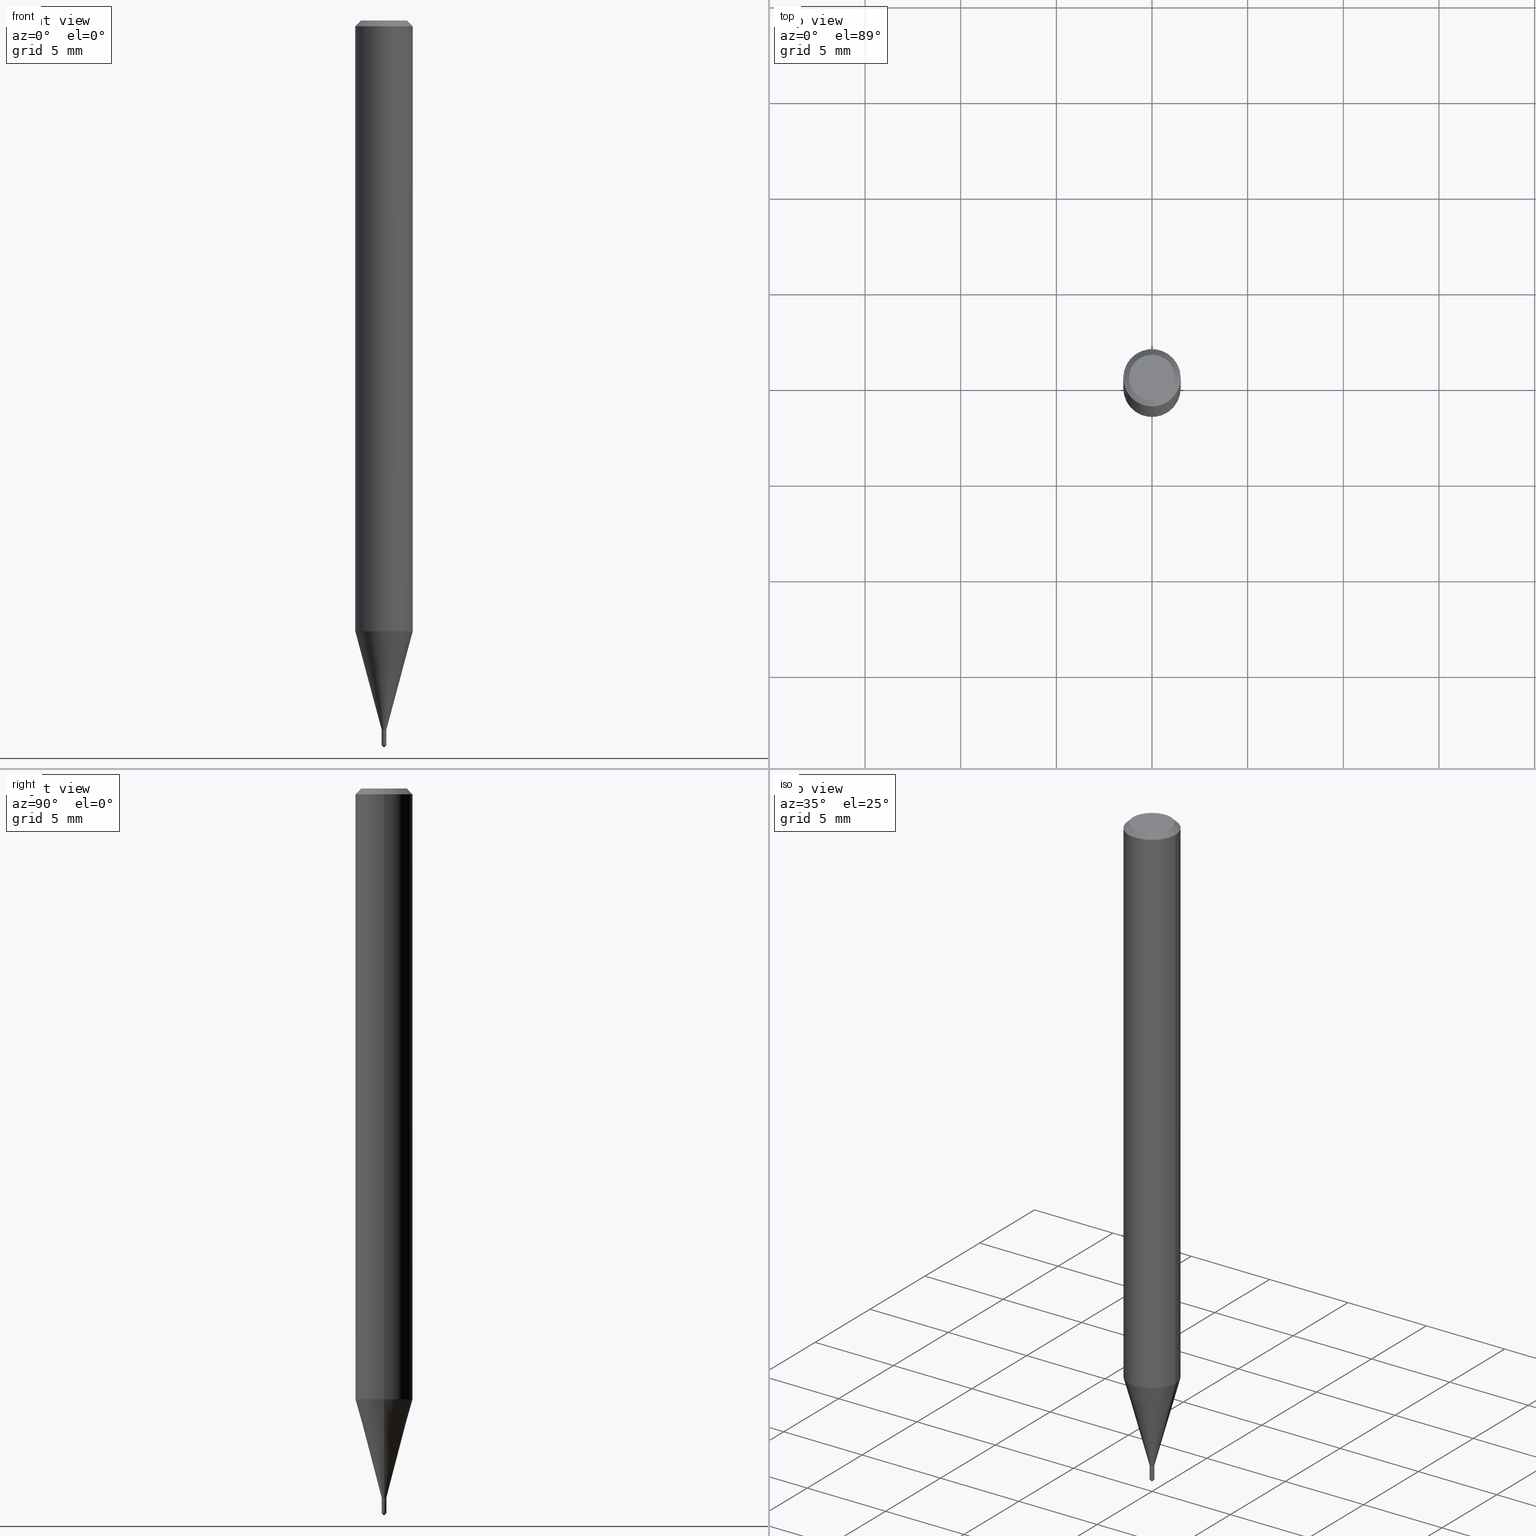
[diagram: canonical four-view strip — front | top / right | iso, engineering-drawing reading convention]
A machine part, canonical four-view strip (front | top / right | iso — engineering-drawing reading convention). The complete STEP part file that produces these views, byte-faithful:
ISO-10303-21;
HEADER;
FILE_DESCRIPTION (( 'STEP AP203' ),
    '1' );
FILE_NAME ('07049.STEP',
    '2024-04-23T19:25:19',
    ( '' ),
    ( '' ),
    'SwSTEP 2.0',
    'SolidWorks 2023',
    '' );
FILE_SCHEMA (( 'CONFIG_CONTROL_DESIGN' ));
ENDSEC;

DATA;
#1 = DIRECTION ( 'NONE',  ( 1.000000000000000000, -6.982962677686196502E-15, 0.000000000000000000 ) ) ;
#2 = CARTESIAN_POINT ( 'NONE',  ( -9.506905849771238472E-28, 1.287285740973184145E-13, 37.87397874015748300 ) ) ;
#3 = VERTEX_POINT ( 'NONE', #424 ) ;
#4 = PERSON_AND_ORGANIZATION ( #270, #16 ) ;
#5 = DIRECTION ( 'NONE',  ( -6.982962677686265922E-15, -1.000000000000000000, 0.000000000000000000 ) ) ;
#6 = AXIS2_PLACEMENT_3D ( 'NONE', #457, #64, #411 ) ;
#7 = EDGE_LOOP ( 'NONE', ( #174, #417, #254, #359 ) ) ;
#8 = PERSON_AND_ORGANIZATION_ROLE ( 'design_supplier' ) ;
#9 = DIRECTION ( 'NONE',  ( 2.438088387897960049E-29, -3.491481338843145188E-15, -1.000000000000000000 ) ) ;
#10 = EDGE_CURVE ( 'NONE', #208, #414, #261, .T. ) ;
#11 = SECURITY_CLASSIFICATION_LEVEL ( 'unclassified' ) ;
#12 = CARTESIAN_POINT ( 'NONE',  ( 3.568428081985351240E-29, -5.094769569639917175E-15, -1.459199999999999831 ) ) ;
#13 = CARTESIAN_POINT ( 'NONE',  ( 3.753425320352740222E-29, -5.090188766778301737E-15, -1.496099999999999985 ) ) ;
#14 = AXIS2_PLACEMENT_3D ( 'NONE', #430, #311, #192 ) ;
#15 = DIRECTION ( 'NONE',  ( -2.445468806185136597E-29, 3.491481338843145583E-15, 1.000000000000000000 ) ) ;
#16 = ORGANIZATION ( 'UNSPECIFIED', 'UNSPECIFIED', '' ) ;
#17 = PERSON_AND_ORGANIZATION ( #270, #16 ) ;
#18 = DIRECTION ( 'NONE',  ( 1.000000000000000000, -6.982962677686289588E-15, 0.000000000000000000 ) ) ;
#19 = APPROVAL_ROLE ( '' ) ;
#20 = EDGE_CURVE ( 'NONE', #479, #99, #36, .T. ) ;
#21 = FACE_OUTER_BOUND ( 'NONE', #172, .T. ) ;
#22 = LINE ( 'NONE', #409, #413 ) ;
#23 = VECTOR ( 'NONE', #184, 39.37007874015748143 ) ;
#24 = VECTOR ( 'NONE', #363, 39.37007874015748143 ) ;
#25 = ORIENTED_EDGE ( 'NONE', *, *, #163, .F. ) ;
#26 = ADVANCED_FACE ( 'NONE', ( #76 ), #464, .T. ) ;
#27 = VERTEX_POINT ( 'NONE', #146 ) ;
#28 = ORIENTED_EDGE ( 'NONE', *, *, #42, .T. ) ;
#29 = AXIS2_PLACEMENT_3D ( 'NONE', #468, #120, #473 ) ;
#30 = EDGE_CURVE ( 'NONE', #479, #414, #205, .T. ) ;
#31 = DIRECTION ( 'NONE',  ( -2.507740191156117864E-29, 3.402305171297575552E-15, 1.000000000000000000 ) ) ;
#32 = VERTEX_POINT ( 'NONE', #308 ) ;
#33 = FACE_OUTER_BOUND ( 'NONE', #34, .T. ) ;
#34 = EDGE_LOOP ( 'NONE', ( #207, #440, #133 ) ) ;
#35 = DIRECTION ( 'NONE',  ( -6.982962677686266711E-15, -1.000000000000000000, 3.552713678800593226E-15 ) ) ;
#36 = LINE ( 'NONE', #296, #431 ) ;
#37 = DIRECTION ( 'NONE',  ( -2.445468806185136597E-29, 3.491481338843145583E-15, 1.000000000000000000 ) ) ;
#38 = AXIS2_PLACEMENT_3D ( 'NONE', #131, #252, #219 ) ;
#39 = DIRECTION ( 'NONE',  ( -2.445468806185136597E-29, 3.491481338843145583E-15, 1.000000000000000000 ) ) ;
#40 = COORDINATED_UNIVERSAL_TIME_OFFSET ( 5, 0, .BEHIND. ) ;
#41 = ORIENTED_EDGE ( 'NONE', *, *, #20, .F. ) ;
#42 = EDGE_CURVE ( 'NONE', #3, #381, #220, .T. ) ;
#43 = DATE_TIME_ROLE ( 'creation_date' ) ;
#44 = EDGE_LOOP ( 'NONE', ( #247, #332, #291 ) ) ;
#45 = CLOSED_SHELL ( 'NONE', ( #96, #75, #286, #408, #67, #124, #140, #26, #183, #234, #331, #236 ) ) ;
#46 = VECTOR ( 'NONE', #110, 39.37007874015748143 ) ;
#47 = DIRECTION ( 'NONE',  ( -2.445468806185136597E-29, 3.491481338843145583E-15, 1.000000000000000000 ) ) ;
#48 = EDGE_CURVE ( 'NONE', #105, #213, #454, .T. ) ;
#49 = DIRECTION ( 'NONE',  ( -2.445468806185136597E-29, 3.491481338843145583E-15, 1.000000000000000000 ) ) ;
#50 = CARTESIAN_POINT ( 'NONE',  ( -0.05904999999999999832, 3.711095515056362547E-16, -0.01181000000000007565 ) ) ;
#51 = DIRECTION ( 'NONE',  ( -2.445468806185136597E-29, 3.491481338843145583E-15, 1.000000000000000000 ) ) ;
#52 = EDGE_LOOP ( 'NONE', ( #410, #248, #25, #65 ) ) ;
#53 = DATE_AND_TIME ( #398, #422 ) ;
#54 = CIRCLE ( 'NONE', #106, 0.004399999999999999398 ) ;
#55 = PLANE ( 'NONE',  #173 ) ;
#56 = CARTESIAN_POINT ( 'NONE',  ( 3.572096285194628524E-29, -5.100006791648181685E-15, -1.460699999999999887 ) ) ;
#57 = COORDINATED_UNIVERSAL_TIME_OFFSET ( 5, 0, .BEHIND. ) ;
#58 = FACE_OUTER_BOUND ( 'NONE', #484, .T. ) ;
#59 = ORIENTED_EDGE ( 'NONE', *, *, #432, .T. ) ;
#60 = AXIS2_PLACEMENT_3D ( 'NONE', #336, #227, #155 ) ;
#61 = ORIENTED_EDGE ( 'NONE', *, *, #351, .F. ) ;
#62 = ORIENTED_EDGE ( 'NONE', *, *, #204, .T. ) ;
#63 = EDGE_CURVE ( 'NONE', #27, #479, #118, .T. ) ;
#64 = DIRECTION ( 'NONE',  ( -2.507740191156118144E-29, 3.402305171297575158E-15, 1.000000000000000000 ) ) ;
#65 = ORIENTED_EDGE ( 'NONE', *, *, #190, .F. ) ;
#66 = CIRCLE ( 'NONE', #346, 0.004899999999999998107 ) ;
#67 = ADVANCED_FACE ( 'NONE', ( #345 ), #151, .T. ) ;
#68 =( GEOMETRIC_REPRESENTATION_CONTEXT ( 3 ) GLOBAL_UNCERTAINTY_ASSIGNED_CONTEXT ( ( #86 ) ) GLOBAL_UNIT_ASSIGNED_CONTEXT ( ( #314, #121, #278 ) ) REPRESENTATION_CONTEXT ( 'NONE', 'WORKASPACE' ) );
#69 = CARTESIAN_POINT ( 'NONE',  ( 3.648582361024890437E-29, -5.203777099372758603E-15, -1.491199999999999859 ) ) ;
#70 = EDGE_LOOP ( 'NONE', ( #41, #406, #369, #171 ) ) ;
#71 = APPROVAL ( #280, 'UNSPECIFIED' ) ;
#72 = DIRECTION ( 'NONE',  ( -4.937700262164483356E-15, -0.7071067811865358044, 0.7071067811865591191 ) ) ;
#73 = ORIENTED_EDGE ( 'NONE', *, *, #357, .F. ) ;
#74 = CARTESIAN_POINT ( 'NONE',  ( 8.265746106709734507E-48, -1.180129479067563789E-33, -3.380025165646692144E-19 ) ) ;
#75 = ADVANCED_FACE ( 'NONE', ( #456 ), #470, .T. ) ;
#76 = FACE_OUTER_BOUND ( 'NONE', #450, .T. ) ;
#77 = PERSON_AND_ORGANIZATION ( #270, #16 ) ;
#78 = DIRECTION ( 'NONE',  ( -0.2588190451025211836, 5.211531920934547886E-15, 0.9659258262890679791 ) ) ;
#79 = DIRECTION ( 'NONE',  ( 1.000000000000000000, 0.000000000000000000, 0.000000000000000000 ) ) ;
#80 = FACE_OUTER_BOUND ( 'NONE', #427, .T. ) ;
#81 = CARTESIAN_POINT ( 'NONE',  ( 3.572096285194627963E-29, -5.100006791648181685E-15, -1.460699999999999443 ) ) ;
#82 = COORDINATED_UNIVERSAL_TIME_OFFSET ( 5, 0, .BEHIND. ) ;
#83 = AXIS2_PLACEMENT_3D ( 'NONE', #299, #223, #423 ) ;
#84 = SECURITY_CLASSIFICATION ( '', '', #11 ) ;
#85 = FACE_OUTER_BOUND ( 'NONE', #216, .T. ) ;
#86 = UNCERTAINTY_MEASURE_WITH_UNIT (LENGTH_MEASURE( 1.000000000000000082E-05 ), #314, 'distance_accuracy_value', 'NONE');
#87 = APPLICATION_PROTOCOL_DEFINITION ( 'international standard', 'config_control_design', 1994, #256 ) ;
#88 = DIRECTION ( 'NONE',  ( -2.445468806185136597E-29, 3.491481338843145583E-15, 1.000000000000000000 ) ) ;
#89 = ORIENTED_EDGE ( 'NONE', *, *, #233, .T. ) ;
#90 = DIRECTION ( 'NONE',  ( -2.445468806185136597E-29, 3.491481338843145583E-15, 1.000000000000000000 ) ) ;
#91 = CONICAL_SURFACE ( 'NONE', #152, 0.004399999999999999398, 0.7853981633978213139 ) ;
#92 = DIRECTION ( 'NONE',  ( -2.445468806185136597E-29, 3.491481338843145583E-15, 1.000000000000000000 ) ) ;
#93 = AXIS2_PLACEMENT_3D ( 'NONE', #371, #179, #35 ) ;
#94 = CARTESIAN_POINT ( 'NONE',  ( 3.570873550791536843E-29, -5.098261050978760971E-15, -1.460199999999999942 ) ) ;
#95 = ORIENTED_EDGE ( 'NONE', *, *, #199, .T. ) ;
#96 = ADVANCED_FACE ( 'NONE', ( #269 ), #98, .T. ) ;
#97 = CALENDAR_DATE ( 2024, 23, 4 ) ;
#98 = CONICAL_SURFACE ( 'NONE', #379, 0.004399999999999999398, 0.7853981633978213139 ) ;
#99 = VERTEX_POINT ( 'NONE', #109 ) ;
#100 = ORIENTED_EDGE ( 'NONE', *, *, #194, .T. ) ;
#101 = FACE_OUTER_BOUND ( 'NONE', #7, .T. ) ;
#102 = VERTEX_POINT ( 'NONE', #258 ) ;
#103 = DESIGN_CONTEXT ( 'detailed design', #256, 'design' ) ;
#104 = CARTESIAN_POINT ( 'NONE',  ( 3.074221942927981307E-29, -4.389174181264353445E-15, -1.257109448770144855 ) ) ;
#105 = VERTEX_POINT ( 'NONE', #383 ) ;
#106 = AXIS2_PLACEMENT_3D ( 'NONE', #393, #159, #471 ) ;
#107 = LOCAL_TIME ( 15, 25, 19.00000000000000000, #40 ) ;
#108 = DIRECTION ( 'NONE',  ( -2.445468806185136597E-29, 3.491481338843145583E-15, 1.000000000000000000 ) ) ;
#109 = CARTESIAN_POINT ( 'NONE',  ( -0.05905000000000017180, -3.969598695798013952E-15, -1.257109448770144855 ) ) ;
#110 = DIRECTION ( 'NONE',  ( -2.445468806185136877E-29, 3.491481338843145188E-15, 1.000000000000000000 ) ) ;
#111 = ORIENTED_EDGE ( 'NONE', *, *, #241, .T. ) ;
#112 = FACE_OUTER_BOUND ( 'NONE', #419, .T. ) ;
#113 = VERTEX_POINT ( 'NONE', #225 ) ;
#114 = AXIS2_PLACEMENT_3D ( 'NONE', #488, #39, #1 ) ;
#115 = PERSON_AND_ORGANIZATION ( #270, #16 ) ;
#116 = LOCAL_TIME ( 15, 25, 19.00000000000000000, #82 ) ;
#117 = EDGE_CURVE ( 'NONE', #32, #302, #321, .T. ) ;
#118 = LINE ( 'NONE', #461, #312 ) ;
#119 = DIRECTION ( 'NONE',  ( -2.445468806185136877E-29, 3.491481338843145188E-15, 1.000000000000000000 ) ) ;
#120 = DIRECTION ( 'NONE',  ( -2.507740191156118144E-29, 3.402305171297575158E-15, 1.000000000000000000 ) ) ;
#121 =( NAMED_UNIT ( * ) PLANE_ANGLE_UNIT ( ) SI_UNIT ( $, .RADIAN. ) );
#122 = AXIS2_PLACEMENT_3D ( 'NONE', #200, #15, #277 ) ;
#123 = CARTESIAN_POINT ( 'NONE',  ( 3.074221942927981307E-29, -4.389174181264353445E-15, -1.257109448770144855 ) ) ;
#124 = ADVANCED_FACE ( 'NONE', ( #80 ), #353, .T. ) ;
#125 = PERSON_AND_ORGANIZATION_ROLE ( 'design_owner' ) ;
#126 = DIRECTION ( 'NONE',  ( 1.000000000000000000, -6.982962677686265922E-15, 4.876176775795936353E-29 ) ) ;
#127 = CARTESIAN_POINT ( 'NONE',  ( 3.572096285194627963E-29, -5.100006791648181685E-15, -1.460699999999999443 ) ) ;
#128 = ORIENTED_EDGE ( 'NONE', *, *, #10, .T. ) ;
#129 = DIRECTION ( 'NONE',  ( -2.445468806185136597E-29, 3.491481338843145583E-15, 1.000000000000000000 ) ) ;
#130 = APPROVAL_PERSON_ORGANIZATION ( #77, #435, #429 ) ;
#131 = CARTESIAN_POINT ( 'NONE',  ( 6.690138410991351740E-28, 8.559113785256521776E-14, -1.460699999999999443 ) ) ;
#132 = ORIENTED_EDGE ( 'NONE', *, *, #209, .F. ) ;
#133 = ORIENTED_EDGE ( 'NONE', *, *, #117, .F. ) ;
#134 = CIRCLE ( 'NONE', #403, 0.004899999999999998107 ) ;
#135 = VERTEX_POINT ( 'NONE', #283 ) ;
#136 = CC_DESIGN_APPROVAL ( #435, ( #147 ) ) ;
#137 = ORIENTED_EDGE ( 'NONE', *, *, #209, .T. ) ;
#138 = CYLINDRICAL_SURFACE ( 'NONE', #365, 0.004899999999999998107 ) ;
#139 = ORIENTED_EDGE ( 'NONE', *, *, #233, .F. ) ;
#140 = ADVANCED_FACE ( 'NONE', ( #437 ), #326, .T. ) ;
#141 = DIRECTION ( 'NONE',  ( 0.7071067811865452413, -7.319954787623248157E-15, -0.7071067811865497932 ) ) ;
#142 = ORIENTED_EDGE ( 'NONE', *, *, #483, .T. ) ;
#143 = AXIS2_PLACEMENT_3D ( 'NONE', #12, #49, #166 ) ;
#144 = APPROVAL_PERSON_ORGANIZATION ( #395, #71, #19 ) ;
#145 = FACE_OUTER_BOUND ( 'NONE', #329, .T. ) ;
#146 = CARTESIAN_POINT ( 'NONE',  ( -0.004899999999999998107, -5.061698716257093659E-15, -1.460199999999999942 ) ) ;
#147 = PRODUCT_DEFINITION ( 'UNKNOWN', '', #276, #103 ) ;
#148 = CARTESIAN_POINT ( 'NONE',  ( 0.05904999999999999832, -4.535783407291118600E-16, -0.01181000000000007565 ) ) ;
#149 = CARTESIAN_POINT ( 'NONE',  ( 3.572096285194627963E-29, -5.100006791648181685E-15, -1.460699999999999443 ) ) ;
#150 = LINE ( 'NONE', #50, #447 ) ;
#151 = CYLINDRICAL_SURFACE ( 'NONE', #245, 0.004899999999999998107 ) ;
#152 = AXIS2_PLACEMENT_3D ( 'NONE', #127, #129, #18 ) ;
#153 = DIRECTION ( 'NONE',  ( 0.000000000000000000, 0.000000000000000000, 1.000000000000000000 ) ) ;
#154 = VECTOR ( 'NONE', #72, 39.37007874015748854 ) ;
#155 = DIRECTION ( 'NONE',  ( 1.000000000000000000, -6.982962677686267499E-15, 4.876176775795936353E-29 ) ) ;
#156 = EDGE_CURVE ( 'NONE', #407, #452, #490, .T. ) ;
#157 = ADVANCED_FACE ( 'NONE', ( #21 ), #55, .F. ) ;
#158 = CARTESIAN_POINT ( 'NONE',  ( 3.568428081985351240E-29, -5.094769569639917175E-15, -1.459199999999999831 ) ) ;
#159 = DIRECTION ( 'NONE',  ( -2.445468806185136597E-29, 3.491481338843145583E-15, 1.000000000000000000 ) ) ;
#160 =( LENGTH_UNIT ( ) NAMED_UNIT ( * ) SI_UNIT ( $, .METRE. ) );
#161 = AXIS2_PLACEMENT_3D ( 'NONE', #376, #392, #271 ) ;
#162 = CARTESIAN_POINT ( 'NONE',  ( -0.004399999999999999398, -5.068742911274737565E-15, -1.460699999999999443 ) ) ;
#163 = EDGE_CURVE ( 'NONE', #208, #27, #275, .T. ) ;
#164 = EDGE_CURVE ( 'NONE', #213, #27, #358, .T. ) ;
#165 = LINE ( 'NONE', #443, #441 ) ;
#166 = DIRECTION ( 'NONE',  ( 1.000000000000000000, -6.982962677686196502E-15, 0.000000000000000000 ) ) ;
#167 = VERTEX_POINT ( 'NONE', #240 ) ;
#168 = AXIS2_PLACEMENT_3D ( 'NONE', #195, #279, #355 ) ;
#169 = DIRECTION ( 'NONE',  ( 1.000000000000000000, -6.982962677686267499E-15, 4.876176775795936353E-29 ) ) ;
#170 = LOCAL_TIME ( 15, 25, 19.00000000000000000, #187 ) ;
#171 = ORIENTED_EDGE ( 'NONE', *, *, #199, .F. ) ;
#172 = EDGE_LOOP ( 'NONE', ( #293, #62 ) ) ;
#173 = AXIS2_PLACEMENT_3D ( 'NONE', #56, #231, #310 ) ;
#174 = ORIENTED_EDGE ( 'NONE', *, *, #432, .F. ) ;
#175 = LINE ( 'NONE', #449, #246 ) ;
#176 = EDGE_LOOP ( 'NONE', ( #445, #244, #111, #486 ) ) ;
#177 = DIRECTION ( 'NONE',  ( -2.507740191156118144E-29, 3.402305171297575158E-15, 1.000000000000000000 ) ) ;
#178 = ORIENTED_EDGE ( 'NONE', *, *, #63, .F. ) ;
#179 = DIRECTION ( 'NONE',  ( -2.507740191156118144E-29, 3.402305171297575158E-15, 1.000000000000000000 ) ) ;
#180 = CARTESIAN_POINT ( 'NONE',  ( 0.000000000000000000, 0.000000000000000000, 0.000000000000000000 ) ) ;
#181 = CONICAL_SURFACE ( 'NONE', #265, 39.37007874015645825, 0.7853981633974352894 ) ;
#182 = CARTESIAN_POINT ( 'NONE',  ( 0.004899999999999998107, -5.128986086760580222E-15, -1.459199999999999831 ) ) ;
#183 = ADVANCED_FACE ( 'NONE', ( #58 ), #446, .T. ) ;
#184 = DIRECTION ( 'NONE',  ( -2.445468806185136877E-29, 3.491481338843145188E-15, 1.000000000000000000 ) ) ;
#185 = DATE_AND_TIME ( #307, #107 ) ;
#186 = DIRECTION ( 'NONE',  ( 1.000000000000000000, -6.982962677686289588E-15, 0.000000000000000000 ) ) ;
#187 = COORDINATED_UNIVERSAL_TIME_OFFSET ( 5, 0, .BEHIND. ) ;
#188 = ORIENTED_EDGE ( 'NONE', *, *, #241, .F. ) ;
#189 = PERSON_AND_ORGANIZATION_ROLE ( 'creator' ) ;
#190 = EDGE_CURVE ( 'NONE', #105, #208, #165, .T. ) ;
#191 = DIRECTION ( 'NONE',  ( -2.445468806185136597E-29, 3.491481338843145583E-15, 1.000000000000000000 ) ) ;
#192 = DIRECTION ( 'NONE',  ( -1.000000000000000000, 6.982962677686266711E-15, 0.000000000000000000 ) ) ;
#193 = APPLICATION_CONTEXT ( 'configuration controlled 3d designs of mechanical parts and assemblies' ) ;
#194 = EDGE_CURVE ( 'NONE', #213, #105, #54, .T. ) ;
#195 = CARTESIAN_POINT ( 'NONE',  ( 8.265746106709734507E-48, -1.180129479067563789E-33, -3.380025165646692144E-19 ) ) ;
#196 = ORIENTED_EDGE ( 'NONE', *, *, #190, .T. ) ;
#197 = AXIS2_PLACEMENT_3D ( 'NONE', #433, #88, #237 ) ;
#198 = CC_DESIGN_APPROVAL ( #71, ( #84 ) ) ;
#199 = EDGE_CURVE ( 'NONE', #99, #3, #412, .T. ) ;
#200 = CARTESIAN_POINT ( 'NONE',  ( 3.570873550791536843E-29, -5.098261050978760971E-15, -1.460199999999999942 ) ) ;
#201 = DIRECTION ( 'NONE',  ( 1.000000000000000000, -6.982962677686266711E-15, 0.000000000000000000 ) ) ;
#202 = SHAPE_DEFINITION_REPRESENTATION ( #425, #466 ) ;
#203 = CARTESIAN_POINT ( 'NONE',  ( -3.421651712062696961E-17, -0.004900000000005098194, -1.460699999999999887 ) ) ;
#204 = EDGE_CURVE ( 'NONE', #113, #135, #364, .T. ) ;
#205 = CIRCLE ( 'NONE', #114, 0.004899999999999998107 ) ;
#206 = APPROVAL_PERSON_ORGANIZATION ( #232, #318, #268 ) ;
#207 = ORIENTED_EDGE ( 'NONE', *, *, #400, .F. ) ;
#208 = VERTEX_POINT ( 'NONE', #272 ) ;
#209 = EDGE_CURVE ( 'NONE', #27, #208, #134, .T. ) ;
#210 = CC_DESIGN_DATE_AND_TIME_ASSIGNMENT ( #238, #442, ( #84 ) ) ;
#211 = ORIENTED_EDGE ( 'NONE', *, *, #194, .F. ) ;
#212 = DIRECTION ( 'NONE',  ( -2.445468806185136597E-29, 3.491481338843145583E-15, 1.000000000000000000 ) ) ;
#213 = VERTEX_POINT ( 'NONE', #401 ) ;
#214 = AXIS2_PLACEMENT_3D ( 'NONE', #323, #478, #262 ) ;
#215 = DIRECTION ( 'NONE',  ( 1.000000000000000000, -6.982962677686266711E-15, 4.876185090822587894E-29 ) ) ;
#216 = EDGE_LOOP ( 'NONE', ( #327, #100, #196, #132 ) ) ;
#217 = CARTESIAN_POINT ( 'NONE',  ( -0.04724000000000000421, 3.504923541997677355E-16, -3.380025165670481712E-19 ) ) ;
#218 = ORIENTED_EDGE ( 'NONE', *, *, #48, .F. ) ;
#219 = DIRECTION ( 'NONE',  ( 1.000000000000000000, -6.982962677686265922E-15, 4.876176775795935793E-29 ) ) ;
#220 = LINE ( 'NONE', #377, #23 ) ;
#221 = AXIS2_PLACEMENT_3D ( 'NONE', #475, #51, #126 ) ;
#222 = DATE_AND_TIME ( #384, #116 ) ;
#223 = DIRECTION ( 'NONE',  ( 2.445468806185136597E-29, -3.491481338843145583E-15, -1.000000000000000000 ) ) ;
#224 = APPROVAL_STATUS ( 'not_yet_approved' ) ;
#225 = CARTESIAN_POINT ( 'NONE',  ( 3.481659405228136815E-17, 0.004899999999994899755, -1.460699999999999887 ) ) ;
#226 = PERSON_AND_ORGANIZATION ( #270, #16 ) ;
#227 = DIRECTION ( 'NONE',  ( -2.445468806185136597E-29, 3.491481338843145583E-15, 1.000000000000000000 ) ) ;
#228 = VECTOR ( 'NONE', #119, 39.37007874015748143 ) ;
#229 = APPROVAL_DATE_TIME ( #222, #435 ) ;
#230 = AXIS2_PLACEMENT_3D ( 'NONE', #74, #37, #215 ) ;
#231 = DIRECTION ( 'NONE',  ( 2.507740191156117584E-29, -3.402305171297575552E-15, -1.000000000000000000 ) ) ;
#232 = PERSON_AND_ORGANIZATION ( #270, #16 ) ;
#233 = EDGE_CURVE ( 'NONE', #167, #381, #421, .T. ) ;
#234 = ADVANCED_FACE ( 'NONE', ( #350 ), #315, .F. ) ;
#235 = DIRECTION ( 'NONE',  ( -2.445468806185136597E-29, 3.491481338843145583E-15, 1.000000000000000000 ) ) ;
#236 = ADVANCED_FACE ( 'NONE', ( #85 ), #91, .T. ) ;
#237 = DIRECTION ( 'NONE',  ( 1.000000000000000000, -6.982962677686266711E-15, 0.000000000000000000 ) ) ;
#238 = DATE_AND_TIME ( #97, #297 ) ;
#239 = AXIS2_PLACEMENT_3D ( 'NONE', #328, #108, #169 ) ;
#240 = CARTESIAN_POINT ( 'NONE',  ( -0.05904999999999999832, -1.795628802471704516E-15, -0.01181000000000007565 ) ) ;
#241 = EDGE_CURVE ( 'NONE', #381, #167, #282, .T. ) ;
#242 = DIRECTION ( 'NONE',  ( 1.000000000000000000, -6.982962677686196502E-15, 0.000000000000000000 ) ) ;
#243 = CC_DESIGN_PERSON_AND_ORGANIZATION_ASSIGNMENT ( #17, #360, ( #84 ) ) ;
#244 = ORIENTED_EDGE ( 'NONE', *, *, #309, .T. ) ;
#245 = AXIS2_PLACEMENT_3D ( 'NONE', #180, #387, #343 ) ;
#246 = VECTOR ( 'NONE', #141, 39.37007874015748143 ) ;
#247 = ORIENTED_EDGE ( 'NONE', *, *, #465, .F. ) ;
#248 = ORIENTED_EDGE ( 'NONE', *, *, #164, .T. ) ;
#249 = MANIFOLD_SOLID_BREP ( 'Body-Move/Copy2[2]', #45 ) ;
#250 = LINE ( 'NONE', #182, #313 ) ;
#251 = ORIENTED_EDGE ( 'NONE', *, *, #416, .F. ) ;
#252 = DIRECTION ( 'NONE',  ( -2.438088387897960049E-29, 3.491481338843145188E-15, 1.000000000000000000 ) ) ;
#253 = CLOSED_SHELL ( 'NONE', ( #436, #370, #300, #338, #157 ) ) ;
#254 = ORIENTED_EDGE ( 'NONE', *, *, #416, .T. ) ;
#255 = VECTOR ( 'NONE', #386, 39.37007874015748854 ) ;
#256 = APPLICATION_CONTEXT ( 'configuration controlled 3d designs of mechanical parts and assemblies' ) ;
#257 = DIRECTION ( 'NONE',  ( -6.982962677686266711E-15, -1.000000000000000000, 3.552713678800593226E-15 ) ) ;
#258 = CARTESIAN_POINT ( 'NONE',  ( 3.751830099988668308E-29, -5.090188766778301737E-15, -1.496099999999999985 ) ) ;
#259 = MANIFOLD_SOLID_BREP ( 'Body-Move/Copy2[1]', #253 ) ;
#260 = DIRECTION ( 'NONE',  ( -6.982962677686265922E-15, -1.000000000000000000, 0.000000000000000000 ) ) ;
#261 = LINE ( 'NONE', #305, #228 ) ;
#262 = DIRECTION ( 'NONE',  ( 1.000000000000000000, -6.982962677686196502E-15, 0.000000000000000000 ) ) ;
#263 = DIRECTION ( 'NONE',  ( -2.445468806185136877E-29, 3.491481338843145188E-15, 1.000000000000000000 ) ) ;
#264 = AXIS2_PLACEMENT_3D ( 'NONE', #281, #92, #201 ) ;
#265 = AXIS2_PLACEMENT_3D ( 'NONE', #2, #177, #257 ) ;
#266 = DIRECTION ( 'NONE',  ( -0.7071067811865452413, 2.468850131082233000E-15, -0.7071067811865497932 ) ) ;
#267 = CARTESIAN_POINT ( 'NONE',  ( 3.648582361024890437E-29, -5.203777099372758603E-15, -1.491199999999999859 ) ) ;
#268 = APPROVAL_ROLE ( '' ) ;
#269 = FACE_OUTER_BOUND ( 'NONE', #52, .T. ) ;
#270 = PERSON ( 'UNSPECIFIED', 'UNSPECIFIED', 'UNSPECIFIED', ('UNSPECIFIED'), ('UNSPECIFIED'), ('UNSPECIFIED') ) ;
#271 = DIRECTION ( 'NONE',  ( -6.982962677686265922E-15, -1.000000000000000000, 0.000000000000000000 ) ) ;
#272 = CARTESIAN_POINT ( 'NONE',  ( 0.004899999999999998107, -5.132477568099423229E-15, -1.460199999999999942 ) ) ;
#273 = EDGE_CURVE ( 'NONE', #414, #479, #66, .T. ) ;
#274 = PRODUCT_RELATED_PRODUCT_CATEGORY ( 'detail', '', ( #476 ) ) ;
#275 = CIRCLE ( 'NONE', #122, 0.004899999999999998107 ) ;
#276 = PRODUCT_DEFINITION_FORMATION_WITH_SPECIFIED_SOURCE ( 'ANY', '', #476, .NOT_KNOWN. ) ;
#277 = DIRECTION ( 'NONE',  ( 1.000000000000000000, -6.982962677686196502E-15, 0.000000000000000000 ) ) ;
#278 =( NAMED_UNIT ( * ) SI_UNIT ( $, .STERADIAN. ) SOLID_ANGLE_UNIT ( ) );
#279 = DIRECTION ( 'NONE',  ( -2.445468806185136597E-29, 3.491481338843145583E-15, 1.000000000000000000 ) ) ;
#280 = APPROVAL_STATUS ( 'not_yet_approved' ) ;
#281 = CARTESIAN_POINT ( 'NONE',  ( 2.888098660104664642E-31, -4.123439461173780879E-17, -0.01181000000000007565 ) ) ;
#282 = CIRCLE ( 'NONE', #264, 0.05904999999999999832 ) ;
#283 = CARTESIAN_POINT ( 'NONE',  ( -3.421651712062698194E-17, -0.004900000000005099061, -1.460699999999999887 ) ) ;
#284 = CYLINDRICAL_SURFACE ( 'NONE', #239, 0.05905000000000008159 ) ;
#285 = ORIENTED_EDGE ( 'NONE', *, *, #303, .T. ) ;
#286 = ADVANCED_FACE ( 'NONE', ( #361 ), #284, .T. ) ;
#287 = ORIENTED_EDGE ( 'NONE', *, *, #303, .F. ) ;
#288 = CIRCLE ( 'NONE', #230, 0.04724000000000000421 ) ;
#289 = ORIENTED_EDGE ( 'NONE', *, *, #42, .F. ) ;
#290 = EDGE_CURVE ( 'NONE', #3, #99, #404, .T. ) ;
#291 = ORIENTED_EDGE ( 'NONE', *, *, #341, .F. ) ;
#292 = CARTESIAN_POINT ( 'NONE',  ( 3.572096285194628524E-29, -5.100006791648181685E-15, -1.460699999999999887 ) ) ;
#293 = ORIENTED_EDGE ( 'NONE', *, *, #459, .T. ) ;
#294 = LINE ( 'NONE', #203, #24 ) ;
#295 = AXIS2_PLACEMENT_3D ( 'NONE', #267, #458, #5 ) ;
#296 = CARTESIAN_POINT ( 'NONE',  ( -0.004899999999999998107, -5.059952975587672945E-15, -1.459199999999999831 ) ) ;
#297 = LOCAL_TIME ( 15, 25, 19.00000000000000000, #57 ) ;
#298 = CYLINDRICAL_SURFACE ( 'NONE', #6, 0.004899999999999998107 ) ;
#299 = CARTESIAN_POINT ( 'NONE',  ( 2.888098660104664642E-31, -4.123439461173780879E-17, -0.01181000000000007565 ) ) ;
#300 = ADVANCED_FACE ( 'NONE', ( #330 ), #306, .T. ) ;
#301 = LINE ( 'NONE', #460, #154 ) ;
#302 = VERTEX_POINT ( 'NONE', #333 ) ;
#303 = EDGE_CURVE ( 'NONE', #99, #167, #489, .T. ) ;
#304 = CARTESIAN_POINT ( 'NONE',  ( -0.004899999999999998107, -5.061698716257093659E-15, -1.459199999999999831 ) ) ;
#305 = CARTESIAN_POINT ( 'NONE',  ( 0.004899999999999998107, -3.421651712066269022E-17, 2.389326620140007827E-31 ) ) ;
#306 = CONICAL_SURFACE ( 'NONE', #93, 39.37007874015645825, 0.7853981633974352894 ) ;
#307 = CALENDAR_DATE ( 2024, 23, 4 ) ;
#308 = CARTESIAN_POINT ( 'NONE',  ( -3.421651712062619307E-17, -0.004900000000005199675, -1.491199999999999859 ) ) ;
#309 = EDGE_CURVE ( 'NONE', #407, #381, #175, .T. ) ;
#310 = DIRECTION ( 'NONE',  ( 6.982962677686265922E-15, 1.000000000000000000, -3.402305171297575552E-15 ) ) ;
#311 = DIRECTION ( 'NONE',  ( 2.445468806185136597E-29, -3.491481338843145583E-15, -1.000000000000000000 ) ) ;
#312 = VECTOR ( 'NONE', #263, 39.37007874015748143 ) ;
#313 = VECTOR ( 'NONE', #374, 39.37007874015748854 ) ;
#314 =( CONVERSION_BASED_UNIT ( 'INCH', #354 ) LENGTH_UNIT ( ) NAMED_UNIT ( #367 ) );
#315 = PLANE ( 'NONE',  #481 ) ;
#316 = DIRECTION ( 'NONE',  ( 0.7071067811868112507, -2.468850131085019257E-15, 0.7071067811862837837 ) ) ;
#317 = ORIENTED_EDGE ( 'NONE', *, *, #273, .T. ) ;
#318 = APPROVAL ( #463, 'UNSPECIFIED' ) ;
#319 = DIRECTION ( 'NONE',  ( 1.000000000000000000, -6.982962677686268288E-15, 0.000000000000000000 ) ) ;
#320 = APPROVAL_DATE_TIME ( #53, #71 ) ;
#321 = CIRCLE ( 'NONE', #295, 0.004899999999999996372 ) ;
#322 = AXIS2_PLACEMENT_3D ( 'NONE', #469, #153, #79 ) ;
#323 = CARTESIAN_POINT ( 'NONE',  ( 3.568428081985351240E-29, -5.094769569639917175E-15, -1.459199999999999831 ) ) ;
#324 = ORIENTED_EDGE ( 'NONE', *, *, #273, .F. ) ;
#325 = ORIENTED_EDGE ( 'NONE', *, *, #156, .T. ) ;
#326 = CONICAL_SURFACE ( 'NONE', #143, 0.004899999999999998107, 0.2617993877991499074 ) ;
#327 = ORIENTED_EDGE ( 'NONE', *, *, #164, .F. ) ;
#328 = CARTESIAN_POINT ( 'NONE',  ( 0.000000000000000000, 0.000000000000000000, 0.000000000000000000 ) ) ;
#329 = EDGE_LOOP ( 'NONE', ( #218, #211 ) ) ;
#330 = FACE_OUTER_BOUND ( 'NONE', #44, .T. ) ;
#331 = ADVANCED_FACE ( 'NONE', ( #145 ), #415, .F. ) ;
#332 = ORIENTED_EDGE ( 'NONE', *, *, #400, .T. ) ;
#333 = CARTESIAN_POINT ( 'NONE',  ( 3.481659405228136815E-17, 0.004899999999994793069, -1.491199999999999859 ) ) ;
#334 = VECTOR ( 'NONE', #391, 39.37007874015748143 ) ;
#335 = AXIS2_PLACEMENT_3D ( 'NONE', #149, #191, #339 ) ;
#336 = CARTESIAN_POINT ( 'NONE',  ( 0.000000000000000000, 0.000000000000000000, 0.000000000000000000 ) ) ;
#337 = DIRECTION ( 'NONE',  ( 1.000000000000000000, -6.982962677686268288E-15, 0.000000000000000000 ) ) ;
#338 = ADVANCED_FACE ( 'NONE', ( #101 ), #298, .T. ) ;
#339 = DIRECTION ( 'NONE',  ( 1.000000000000000000, -6.982962677686289588E-15, 0.000000000000000000 ) ) ;
#340 = CC_DESIGN_DATE_AND_TIME_ASSIGNMENT ( #185, #43, ( #147 ) ) ;
#341 = EDGE_CURVE ( 'NONE', #302, #32, #347, .T. ) ;
#342 = APPROVAL_DATE_TIME ( #426, #318 ) ;
#343 = DIRECTION ( 'NONE',  ( 1.000000000000000000, -6.982962677686265922E-15, 4.876176775795936353E-29 ) ) ;
#344 = CALENDAR_DATE ( 2024, 23, 4 ) ;
#345 = FACE_OUTER_BOUND ( 'NONE', #402, .T. ) ;
#346 = AXIS2_PLACEMENT_3D ( 'NONE', #158, #439, #399 ) ;
#347 = CIRCLE ( 'NONE', #372, 0.004899999999999996372 ) ;
#348 = PERSON_AND_ORGANIZATION ( #270, #16 ) ;
#349 = CC_DESIGN_PERSON_AND_ORGANIZATION_ASSIGNMENT ( #226, #125, ( #476 ) ) ;
#350 = FACE_OUTER_BOUND ( 'NONE', #368, .T. ) ;
#351 = EDGE_CURVE ( 'NONE', #452, #407, #288, .T. ) ;
#352 = MECHANICAL_CONTEXT ( 'NONE', #193, 'mechanical' ) ;
#353 = CYLINDRICAL_SURFACE ( 'NONE', #221, 0.004899999999999998107 ) ;
#354 = LENGTH_MEASURE_WITH_UNIT ( LENGTH_MEASURE( 0.02539999999999999897 ), #160 );
#355 = DIRECTION ( 'NONE',  ( 1.000000000000000000, -6.982962677686266711E-15, 4.876185090822587894E-29 ) ) ;
#356 = ORIENTED_EDGE ( 'NONE', *, *, #63, .T. ) ;
#357 = EDGE_CURVE ( 'NONE', #414, #3, #250, .T. ) ;
#358 = LINE ( 'NONE', #162, #334 ) ;
#359 = ORIENTED_EDGE ( 'NONE', *, *, #204, .F. ) ;
#360 = PERSON_AND_ORGANIZATION_ROLE ( 'classification_officer' ) ;
#361 = FACE_OUTER_BOUND ( 'NONE', #362, .T. ) ;
#362 = EDGE_LOOP ( 'NONE', ( #394, #285, #188, #289 ) ) ;
#363 = DIRECTION ( 'NONE',  ( -2.507740191156117864E-29, 3.402305171297575552E-15, 1.000000000000000000 ) ) ;
#364 = CIRCLE ( 'NONE', #29, 0.004899999999999999842 ) ;
#365 = AXIS2_PLACEMENT_3D ( 'NONE', #292, #451, #453 ) ;
#366 = ORIENTED_EDGE ( 'NONE', *, *, #10, .F. ) ;
#367 = DIMENSIONAL_EXPONENTS ( 1.000000000000000000, 0.000000000000000000, 0.000000000000000000, 0.000000000000000000, 0.000000000000000000, 0.000000000000000000, 0.000000000000000000 ) ;
#368 = EDGE_LOOP ( 'NONE', ( #373, #325 ) ) ;
#369 = ORIENTED_EDGE ( 'NONE', *, *, #357, .T. ) ;
#370 = ADVANCED_FACE ( 'NONE', ( #33 ), #181, .T. ) ;
#371 = CARTESIAN_POINT ( 'NONE',  ( -9.506905849771238472E-28, 1.287285740973184145E-13, 37.87397874015748300 ) ) ;
#372 = AXIS2_PLACEMENT_3D ( 'NONE', #69, #418, #260 ) ;
#373 = ORIENTED_EDGE ( 'NONE', *, *, #351, .T. ) ;
#374 = DIRECTION ( 'NONE',  ( 0.2588190451025211836, 1.565188264969622559E-15, 0.9659258262890679791 ) ) ;
#375 = ORIENTED_EDGE ( 'NONE', *, *, #20, .T. ) ;
#376 = CARTESIAN_POINT ( 'NONE',  ( 3.572096285194628524E-29, -5.100006791648181685E-15, -1.460699999999999887 ) ) ;
#377 = CARTESIAN_POINT ( 'NONE',  ( 0.05905000000000008159, -4.123439461173746736E-16, 2.879382386107504424E-30 ) ) ;
#378 = CARTESIAN_POINT ( 'NONE',  ( -0.05905000000000008159, 4.195754854663397395E-16, -2.904631170795525745E-30 ) ) ;
#379 = AXIS2_PLACEMENT_3D ( 'NONE', #81, #47, #186 ) ;
#380 = CIRCLE ( 'NONE', #161, 0.004899999999999999842 ) ;
#381 = VERTEX_POINT ( 'NONE', #148 ) ;
#382 = PERSON_AND_ORGANIZATION_ROLE ( 'creator' ) ;
#383 = CARTESIAN_POINT ( 'NONE',  ( 0.004399999999999999398, -5.130731827430000937E-15, -1.460699999999999443 ) ) ;
#384 = CALENDAR_DATE ( 2024, 23, 4 ) ;
#385 = EDGE_LOOP ( 'NONE', ( #480, #59, #462, #251 ) ) ;
#386 = DIRECTION ( 'NONE',  ( 5.024295867787996125E-15, 0.7071067811865406894, 0.7071067811865542341 ) ) ;
#387 = DIRECTION ( 'NONE',  ( -2.445468806185136597E-29, 3.491481338843145583E-15, 1.000000000000000000 ) ) ;
#388 = AXIS2_PLACEMENT_3D ( 'NONE', #123, #235, #319 ) ;
#389 = CC_DESIGN_APPROVAL ( #318, ( #276 ) ) ;
#390 = LINE ( 'NONE', #13, #255 ) ;
#391 = DIRECTION ( 'NONE',  ( -0.7071067811868112507, 7.493145998871307104E-15, 0.7071067811862837837 ) ) ;
#392 = DIRECTION ( 'NONE',  ( -2.507740191156118144E-29, 3.402305171297575158E-15, 1.000000000000000000 ) ) ;
#393 = CARTESIAN_POINT ( 'NONE',  ( 3.572096285194627963E-29, -5.100006791648181685E-15, -1.460699999999999443 ) ) ;
#394 = ORIENTED_EDGE ( 'NONE', *, *, #290, .T. ) ;
#395 = PERSON_AND_ORGANIZATION ( #270, #16 ) ;
#396 = CC_DESIGN_PERSON_AND_ORGANIZATION_ASSIGNMENT ( #115, #382, ( #147 ) ) ;
#397 = DIRECTION ( 'NONE',  ( -1.000000000000000000, 6.982962677686265922E-15, -4.876176775795935793E-29 ) ) ;
#398 = CALENDAR_DATE ( 2024, 23, 4 ) ;
#399 = DIRECTION ( 'NONE',  ( 1.000000000000000000, -6.982962677686196502E-15, 0.000000000000000000 ) ) ;
#400 = EDGE_CURVE ( 'NONE', #102, #32, #301, .T. ) ;
#401 = CARTESIAN_POINT ( 'NONE',  ( -0.004399999999999999398, -5.066093684100626364E-15, -1.460699999999999443 ) ) ;
#402 = EDGE_LOOP ( 'NONE', ( #434, #356, #324, #366 ) ) ;
#403 = AXIS2_PLACEMENT_3D ( 'NONE', #94, #90, #242 ) ;
#404 = CIRCLE ( 'NONE', #405, 0.05905000000000017180 ) ;
#405 = AXIS2_PLACEMENT_3D ( 'NONE', #104, #212, #337 ) ;
#406 = ORIENTED_EDGE ( 'NONE', *, *, #30, .T. ) ;
#407 = VERTEX_POINT ( 'NONE', #487 ) ;
#408 = ADVANCED_FACE ( 'NONE', ( #112 ), #455, .T. ) ;
#409 = CARTESIAN_POINT ( 'NONE',  ( 3.481659405228061010E-17, 0.004899999999994898887, -1.460699999999999887 ) ) ;
#410 = ORIENTED_EDGE ( 'NONE', *, *, #48, .T. ) ;
#411 = DIRECTION ( 'NONE',  ( -6.982962677686265922E-15, -1.000000000000000000, 0.000000000000000000 ) ) ;
#412 = CIRCLE ( 'NONE', #388, 0.05905000000000017180 ) ;
#413 = VECTOR ( 'NONE', #31, 39.37007874015748143 ) ;
#414 = VERTEX_POINT ( 'NONE', #420 ) ;
#415 = PLANE ( 'NONE',  #38 ) ;
#416 = EDGE_CURVE ( 'NONE', #32, #135, #294, .T. ) ;
#417 = ORIENTED_EDGE ( 'NONE', *, *, #341, .T. ) ;
#418 = DIRECTION ( 'NONE',  ( -2.507740191156118144E-29, 3.402305171297575158E-15, 1.000000000000000000 ) ) ;
#419 = EDGE_LOOP ( 'NONE', ( #317, #375, #474, #73 ) ) ;
#420 = CARTESIAN_POINT ( 'NONE',  ( 0.004899999999999998107, -5.128986086760580222E-15, -1.459199999999999831 ) ) ;
#421 = CIRCLE ( 'NONE', #197, 0.05904999999999999832 ) ;
#422 = LOCAL_TIME ( 15, 25, 19.00000000000000000, #438 ) ;
#423 = DIRECTION ( 'NONE',  ( -1.000000000000000000, 6.982962677686266711E-15, 0.000000000000000000 ) ) ;
#424 = CARTESIAN_POINT ( 'NONE',  ( 0.05905000000000017180, -4.801518127381729154E-15, -1.257109448770144855 ) ) ;
#425 = PRODUCT_DEFINITION_SHAPE ( 'NONE', 'NONE',  #147 ) ;
#426 = DATE_AND_TIME ( #344, #170 ) ;
#427 = EDGE_LOOP ( 'NONE', ( #178, #137, #128, #448 ) ) ;
#428 = CC_DESIGN_PERSON_AND_ORGANIZATION_ASSIGNMENT ( #4, #189, ( #276 ) ) ;
#429 = APPROVAL_ROLE ( '' ) ;
#430 = CARTESIAN_POINT ( 'NONE',  ( 2.888098660104664642E-31, -4.123439461173780879E-17, -0.01181000000000007565 ) ) ;
#431 = VECTOR ( 'NONE', #78, 39.37007874015748854 ) ;
#432 = EDGE_CURVE ( 'NONE', #302, #113, #22, .T. ) ;
#433 = CARTESIAN_POINT ( 'NONE',  ( 2.888098660104664642E-31, -4.123439461173780879E-17, -0.01181000000000007565 ) ) ;
#434 = ORIENTED_EDGE ( 'NONE', *, *, #163, .T. ) ;
#435 = APPROVAL ( #224, 'UNSPECIFIED' ) ;
#436 = ADVANCED_FACE ( 'NONE', ( #485 ), #138, .T. ) ;
#437 = FACE_OUTER_BOUND ( 'NONE', #70, .T. ) ;
#438 = COORDINATED_UNIVERSAL_TIME_OFFSET ( 5, 0, .BEHIND. ) ;
#439 = DIRECTION ( 'NONE',  ( -2.445468806185136597E-29, 3.491481338843145583E-15, 1.000000000000000000 ) ) ;
#440 = ORIENTED_EDGE ( 'NONE', *, *, #465, .T. ) ;
#441 = VECTOR ( 'NONE', #316, 39.37007874015748143 ) ;
#442 = DATE_TIME_ROLE ( 'classification_date' ) ;
#443 = CARTESIAN_POINT ( 'NONE',  ( 0.004399999999999999398, -5.130731827430000937E-15, -1.460699999999999443 ) ) ;
#444 = ORIENTED_EDGE ( 'NONE', *, *, #309, .F. ) ;
#445 = ORIENTED_EDGE ( 'NONE', *, *, #156, .F. ) ;
#446 = CONICAL_SURFACE ( 'NONE', #14, 0.05904999999999999832, 0.7853981633974450594 ) ;
#447 = VECTOR ( 'NONE', #266, 39.37007874015748143 ) ;
#448 = ORIENTED_EDGE ( 'NONE', *, *, #30, .F. ) ;
#449 = CARTESIAN_POINT ( 'NONE',  ( 0.05904999999999999832, -4.463468013801466955E-16, -0.01181000000000007565 ) ) ;
#450 = EDGE_LOOP ( 'NONE', ( #287, #95, #28, #139 ) ) ;
#451 = DIRECTION ( 'NONE',  ( -2.507740191156118144E-29, 3.402305171297575158E-15, 1.000000000000000000 ) ) ;
#452 = VERTEX_POINT ( 'NONE', #217 ) ;
#453 = DIRECTION ( 'NONE',  ( -6.982962677686265922E-15, -1.000000000000000000, 0.000000000000000000 ) ) ;
#454 = CIRCLE ( 'NONE', #335, 0.004399999999999999398 ) ;
#455 = CONICAL_SURFACE ( 'NONE', #214, 0.004899999999999998107, 0.2617993877991499074 ) ;
#456 = FACE_OUTER_BOUND ( 'NONE', #176, .T. ) ;
#457 = CARTESIAN_POINT ( 'NONE',  ( 3.572096285194628524E-29, -5.100006791648181685E-15, -1.460699999999999887 ) ) ;
#458 = DIRECTION ( 'NONE',  ( -2.507740191156118144E-29, 3.402305171297575158E-15, 1.000000000000000000 ) ) ;
#459 = EDGE_CURVE ( 'NONE', #135, #113, #380, .T. ) ;
#460 = CARTESIAN_POINT ( 'NONE',  ( 3.569910475934442376E-29, -5.350708022645931072E-15, -1.496099999999999985 ) ) ;
#461 = CARTESIAN_POINT ( 'NONE',  ( -0.004899999999999998107, 3.481659405224489566E-17, -2.410278194224902830E-31 ) ) ;
#462 = ORIENTED_EDGE ( 'NONE', *, *, #459, .F. ) ;
#463 = APPROVAL_STATUS ( 'not_yet_approved' ) ;
#464 = CYLINDRICAL_SURFACE ( 'NONE', #60, 0.05905000000000008159 ) ;
#465 = EDGE_CURVE ( 'NONE', #102, #302, #390, .T. ) ;
#466 = ADVANCED_BREP_SHAPE_REPRESENTATION ( '07049', ( #259, #249, #322 ), #68 ) ;
#467 = APPLICATION_PROTOCOL_DEFINITION ( 'international standard', 'config_control_design', 1994, #193 ) ;
#468 = CARTESIAN_POINT ( 'NONE',  ( 3.572096285194628524E-29, -5.100006791648181685E-15, -1.460699999999999887 ) ) ;
#469 = CARTESIAN_POINT ( 'NONE',  ( 0.000000000000000000, 0.000000000000000000, 0.000000000000000000 ) ) ;
#470 = CONICAL_SURFACE ( 'NONE', #83, 0.05904999999999999832, 0.7853981633974450594 ) ;
#471 = DIRECTION ( 'NONE',  ( 1.000000000000000000, -6.982962677686289588E-15, 0.000000000000000000 ) ) ;
#472 = CARTESIAN_POINT ( 'NONE',  ( 4.132873053354867254E-48, -5.900647395337818946E-34, -1.690012582823346072E-19 ) ) ;
#473 = DIRECTION ( 'NONE',  ( -6.982962677686265922E-15, -1.000000000000000000, 0.000000000000000000 ) ) ;
#474 = ORIENTED_EDGE ( 'NONE', *, *, #290, .F. ) ;
#475 = CARTESIAN_POINT ( 'NONE',  ( 0.000000000000000000, 0.000000000000000000, 0.000000000000000000 ) ) ;
#476 = PRODUCT ( '07049', '07049', '', ( #352 ) ) ;
#477 = CC_DESIGN_PERSON_AND_ORGANIZATION_ASSIGNMENT ( #348, #8, ( #276 ) ) ;
#478 = DIRECTION ( 'NONE',  ( -2.445468806185136597E-29, 3.491481338843145583E-15, 1.000000000000000000 ) ) ;
#479 = VERTEX_POINT ( 'NONE', #304 ) ;
#480 = ORIENTED_EDGE ( 'NONE', *, *, #117, .T. ) ;
#481 = AXIS2_PLACEMENT_3D ( 'NONE', #472, #9, #397 ) ;
#482 = CC_DESIGN_SECURITY_CLASSIFICATION ( #84, ( #276 ) ) ;
#483 = EDGE_CURVE ( 'NONE', #452, #167, #150, .T. ) ;
#484 = EDGE_LOOP ( 'NONE', ( #444, #61, #142, #89 ) ) ;
#485 = FACE_OUTER_BOUND ( 'NONE', #385, .T. ) ;
#486 = ORIENTED_EDGE ( 'NONE', *, *, #483, .F. ) ;
#487 = CARTESIAN_POINT ( 'NONE',  ( 0.04724000000000000421, -3.852183633974369345E-16, -3.380025165621689721E-19 ) ) ;
#488 = CARTESIAN_POINT ( 'NONE',  ( 3.568428081985351240E-29, -5.094769569639917175E-15, -1.459199999999999831 ) ) ;
#489 = LINE ( 'NONE', #378, #46 ) ;
#490 = CIRCLE ( 'NONE', #168, 0.04724000000000000421 ) ;
ENDSEC;
END-ISO-10303-21;
